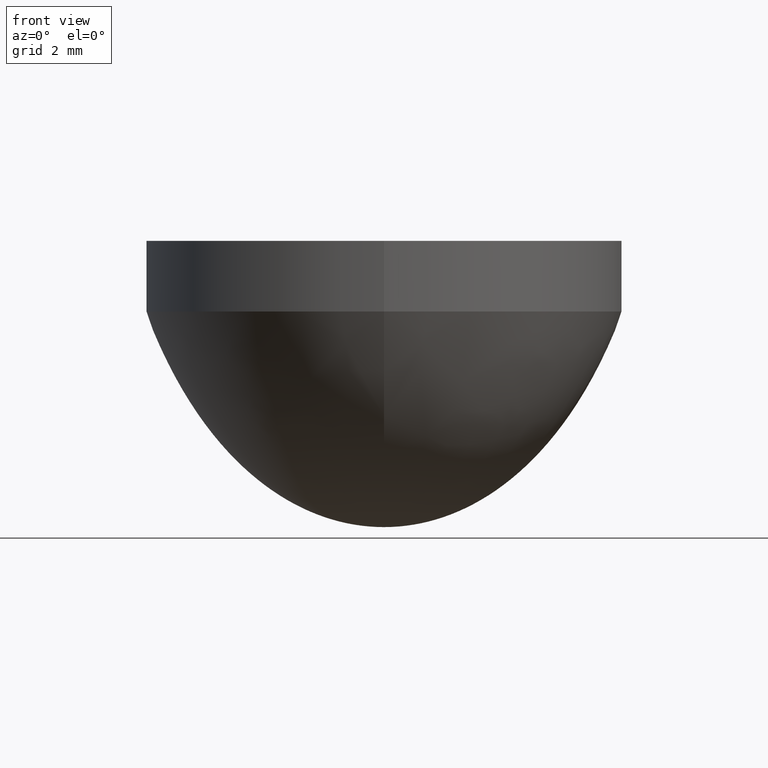
[diagram: clean part render]
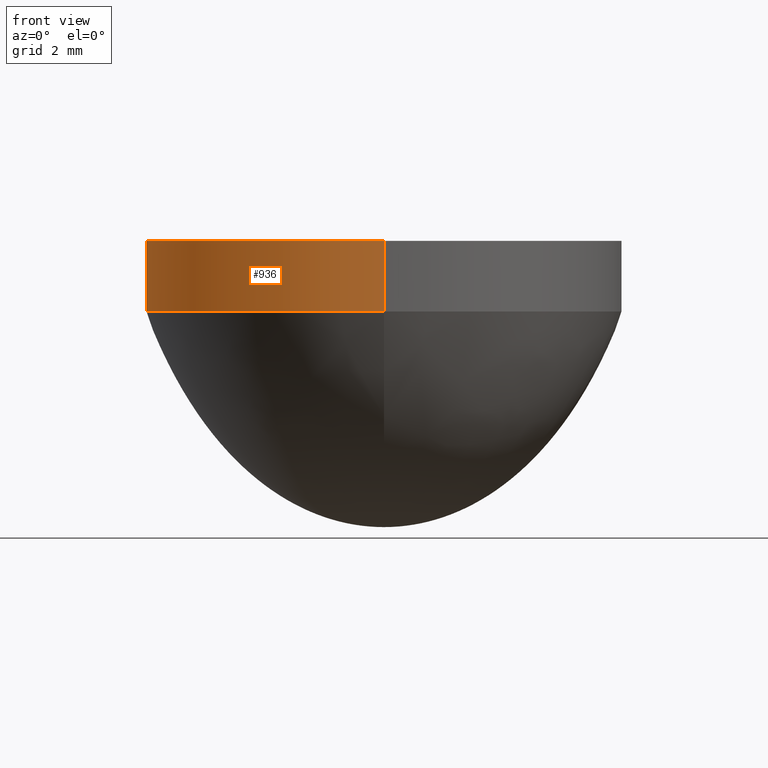
[diagram: same view with one face highlighted and labeled with its STEP entity id]
A machine part, front view. The second image highlights one B-rep face of the part: STEP entity #936.
In plain terms, the highlighted cylindrical surface (partial cylindrical patch) has radius 6.25 mm, axis along (0, 0, -1).
Its self-contained STEP definition (entity closure, byte-faithful):
#63 = DIRECTION ( 'NONE',  ( 0.000000000000000000, 0.000000000000000000, -1.000000000000000000 ) ) ;
#104 = VECTOR ( 'NONE', #216, 1000.000000000000000 ) ;
#107 = ORIENTED_EDGE ( 'NONE', *, *, #628, .T. ) ;
#130 = CARTESIAN_POINT ( 'NONE',  ( 7.654042494670957606E-16, -6.250000000000000000, 5.650683899439189695 ) ) ;
#134 = CARTESIAN_POINT ( 'NONE',  ( 7.654042494670957606E-16, -6.250000000000000000, 7.500000000000000000 ) ) ;
#139 = CARTESIAN_POINT ( 'NONE',  ( 0.000000000000000000, 0.000000000000000000, 7.875000000000000000 ) ) ;
#146 = AXIS2_PLACEMENT_3D ( 'NONE', #227, #401, #821 ) ;
#158 = EDGE_CURVE ( 'NONE', #850, #208, #978, .T. ) ;
#162 = CIRCLE ( 'NONE', #458, 6.250000000000000000 ) ;
#205 = EDGE_CURVE ( 'NONE', #208, #944, #653, .T. ) ;
#208 = VERTEX_POINT ( 'NONE', #563 ) ;
#216 = DIRECTION ( 'NONE',  ( 0.000000000000000000, 0.000000000000000000, -1.000000000000000000 ) ) ;
#227 = CARTESIAN_POINT ( 'NONE',  ( 0.000000000000000000, 0.000000000000000000, 5.650683899439189695 ) ) ;
#305 = CARTESIAN_POINT ( 'NONE',  ( 7.654042494670957606E-16, -6.250000000000000000, 7.875000000000000000 ) ) ;
#351 = VECTOR ( 'NONE', #63, 1000.000000000000000 ) ;
#354 = ORIENTED_EDGE ( 'NONE', *, *, #205, .T. ) ;
#381 = CYLINDRICAL_SURFACE ( 'NONE', #794, 6.250000000000000000 ) ;
#401 = DIRECTION ( 'NONE',  ( 0.000000000000000000, 0.000000000000000000, 1.000000000000000000 ) ) ;
#458 = AXIS2_PLACEMENT_3D ( 'NONE', #713, #813, #1053 ) ;
#527 = ORIENTED_EDGE ( 'NONE', *, *, #815, .F. ) ;
#556 = FACE_OUTER_BOUND ( 'NONE', #948, .T. ) ;
#563 = CARTESIAN_POINT ( 'NONE',  ( 0.000000000000000000, 6.250000000000000000, 5.650683899439189695 ) ) ;
#569 = CARTESIAN_POINT ( 'NONE',  ( 0.000000000000000000, 6.250000000000000000, 7.875000000000000000 ) ) ;
#628 = EDGE_CURVE ( 'NONE', #862, #850, #162, .T. ) ;
#653 = CIRCLE ( 'NONE', #146, 6.250000000000000000 ) ;
#713 = CARTESIAN_POINT ( 'NONE',  ( 0.000000000000000000, 0.000000000000000000, 7.500000000000000000 ) ) ;
#794 = AXIS2_PLACEMENT_3D ( 'NONE', #139, #881, #808 ) ;
#808 = DIRECTION ( 'NONE',  ( 0.000000000000000000, 1.000000000000000000, 0.000000000000000000 ) ) ;
#813 = DIRECTION ( 'NONE',  ( 0.000000000000000000, 0.000000000000000000, -1.000000000000000000 ) ) ;
#815 = EDGE_CURVE ( 'NONE', #862, #944, #1047, .T. ) ;
#821 = DIRECTION ( 'NONE',  ( 0.000000000000000000, 1.000000000000000000, 0.000000000000000000 ) ) ;
#850 = VERTEX_POINT ( 'NONE', #1067 ) ;
#862 = VERTEX_POINT ( 'NONE', #134 ) ;
#881 = DIRECTION ( 'NONE',  ( 0.000000000000000000, 0.000000000000000000, -1.000000000000000000 ) ) ;
#936 = ADVANCED_FACE ( 'NONE', ( #556 ), #381, .T. ) ;
#944 = VERTEX_POINT ( 'NONE', #130 ) ;
#948 = EDGE_LOOP ( 'NONE', ( #527, #107, #1039, #354 ) ) ;
#978 = LINE ( 'NONE', #569, #351 ) ;
#1039 = ORIENTED_EDGE ( 'NONE', *, *, #158, .T. ) ;
#1047 = LINE ( 'NONE', #305, #104 ) ;
#1053 = DIRECTION ( 'NONE',  ( 0.000000000000000000, 1.000000000000000000, 0.000000000000000000 ) ) ;
#1067 = CARTESIAN_POINT ( 'NONE',  ( 0.000000000000000000, 6.250000000000000000, 7.500000000000000000 ) ) ;